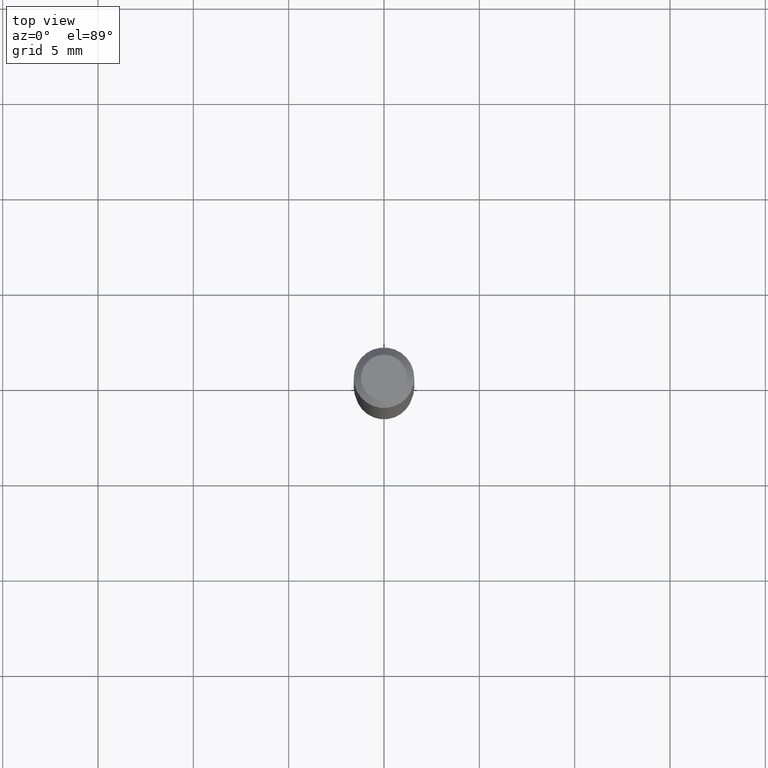
[diagram: clean part render]
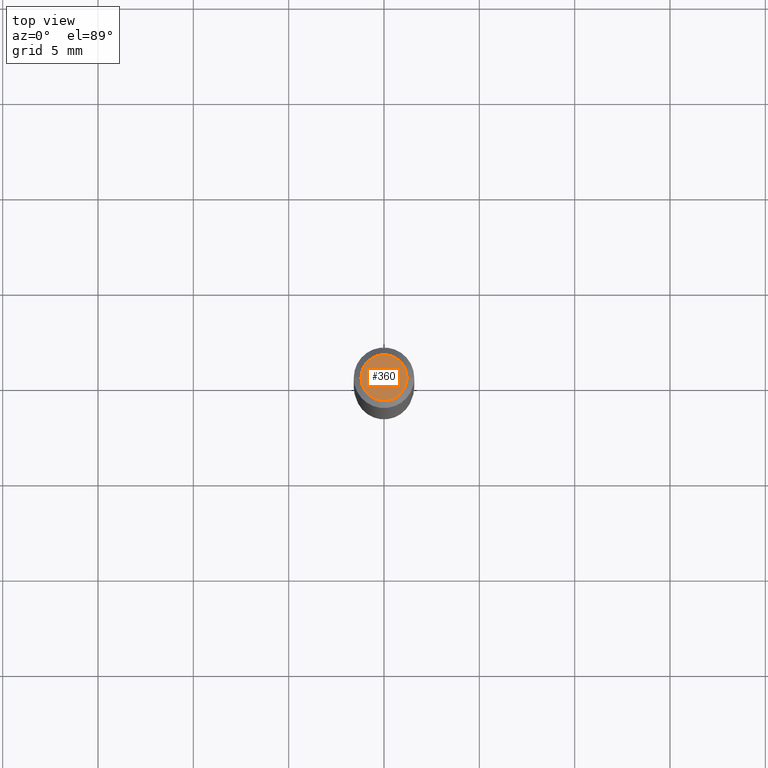
[diagram: same view with one face highlighted and labeled with its STEP entity id]
A machine part, top view. The second image highlights one B-rep face of the part: STEP entity #360.
In plain terms, the highlighted planar face has unit normal (0, -0, -1).
Its self-contained STEP definition (entity closure, byte-faithful):
#7 = EDGE_CURVE ( 'NONE', #323, #98, #393, .T. ) ;
#38 = DIRECTION ( 'NONE',  ( -2.445468806185136597E-29, 3.491481338843145583E-15, 1.000000000000000000 ) ) ;
#59 = EDGE_LOOP ( 'NONE', ( #336, #231 ) ) ;
#88 = CARTESIAN_POINT ( 'NONE',  ( 3.316907271900976589E-16, 0.04750000000000000749, -2.925296391183627249E-17 ) ) ;
#98 = VERTEX_POINT ( 'NONE', #146 ) ;
#122 = FACE_OUTER_BOUND ( 'NONE', #59, .T. ) ;
#125 = CARTESIAN_POINT ( 'NONE',  ( -6.680649051745406845E-45, 9.538196290434862081E-31, 2.731847993664263218E-16 ) ) ;
#127 = DIRECTION ( 'NONE',  ( -1.000000000000000000, 6.982962677686265922E-15, -4.876176775795935793E-29 ) ) ;
#146 = CARTESIAN_POINT ( 'NONE',  ( -0.04750000000000000749, 3.578768372314221353E-16, 2.731847993664239060E-16 ) ) ;
#166 = PLANE ( 'NONE',  #202 ) ;
#202 = AXIS2_PLACEMENT_3D ( 'NONE', #88, #329, #127 ) ;
#231 = ORIENTED_EDGE ( 'NONE', *, *, #7, .T. ) ;
#246 = AXIS2_PLACEMENT_3D ( 'NONE', #260, #298, #340 ) ;
#260 = CARTESIAN_POINT ( 'NONE',  ( -6.680649051745406845E-45, 9.538196290434862081E-31, 2.731847993664263218E-16 ) ) ;
#274 = AXIS2_PLACEMENT_3D ( 'NONE', #125, #38, #333 ) ;
#298 = DIRECTION ( 'NONE',  ( -2.445468806185136597E-29, 3.491481338843145583E-15, 1.000000000000000000 ) ) ;
#323 = VERTEX_POINT ( 'NONE', #408 ) ;
#329 = DIRECTION ( 'NONE',  ( 2.438088387897960049E-29, -3.491481338843145188E-15, -1.000000000000000000 ) ) ;
#333 = DIRECTION ( 'NONE',  ( 1.000000000000000000, -6.982962677686266711E-15, 4.852736867747365086E-29 ) ) ;
#336 = ORIENTED_EDGE ( 'NONE', *, *, #344, .T. ) ;
#340 = DIRECTION ( 'NONE',  ( 1.000000000000000000, -6.982962677686266711E-15, 4.852736867747365086E-29 ) ) ;
#344 = EDGE_CURVE ( 'NONE', #98, #323, #496, .T. ) ;
#360 = ADVANCED_FACE ( 'NONE', ( #122 ), #166, .F. ) ;
#393 = CIRCLE ( 'NONE', #246, 0.04750000000000000749 ) ;
#408 = CARTESIAN_POINT ( 'NONE',  ( 0.04750000000000000749, -4.035134999187568762E-16, 2.731847993664288856E-16 ) ) ;
#496 = CIRCLE ( 'NONE', #274, 0.04750000000000000749 ) ;